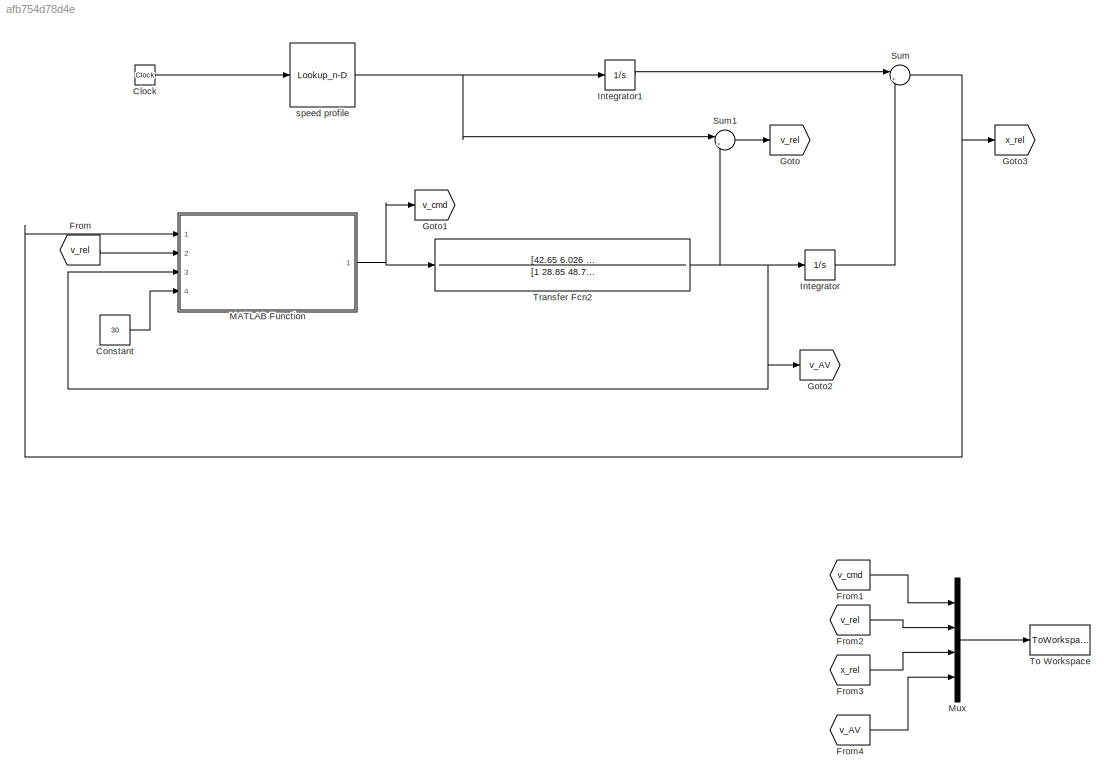
MODEL slx_afb754d78d4e
KIND model
CONFIG AbsTol = auto
CONFIG EnableMultiTasking = off
CONFIG FixedStep = auto
CONFIG MaxStep = auto
CONFIG MinStep = auto
CONFIG RelTol = 1e-3
CONFIG SampleTimeConstraint = Unconstrained
CONFIG Solver = VariableStepAuto
CONFIG SolverName = VariableStepAuto
CONFIG StartTime = 0.0
CONFIG StopTime = 10.0
BLOCK [Clock] Clock
BLOCK [Constant] Constant
  Value = 30
BLOCK [From] From
  GotoTag = v_rel
BLOCK [From] From1
  GotoTag = v_cmd
BLOCK [From] From2
  GotoTag = v_rel
BLOCK [From] From3
  GotoTag = x_rel
BLOCK [From] From4
  GotoTag = v_AV
BLOCK [Goto] Goto
  GotoTag = v_rel
BLOCK [Goto] Goto1
  GotoTag = v_cmd
BLOCK [Goto] Goto2
  GotoTag = v_AV
BLOCK [Goto] Goto3
  GotoTag = x_rel
BLOCK [Integrator] Integrator
  Ports = [1, 1]
BLOCK [Integrator] Integrator1
  Ports = [1, 1]
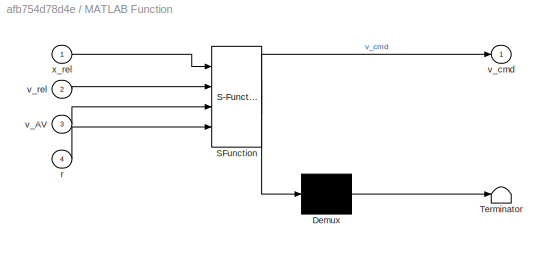
BLOCK [SubSystem] MATLAB Function
  ErrorFcn = Stateflow.Translate.translate
  PermitHierarchicalResolution = ExplicitOnly
  Ports = [4, 1]
  RequestExecContextInheritance = off
  SFBlockType = MATLAB Function
  TreatAsAtomicUnit = on
BLOCK [Demux] MATLAB Function/ Demux 
  Outputs = 1
  Ports = [1, 1]
BLOCK [S-Function] MATLAB Function/ SFunction 
  EnableBusSupport = off
  FunctionName = sf_sfun
  PortCounts = [4 2]
  Ports = [4, 2]
  SFcnIsStateOwnerBlock = off
  SFunctionDeploymentMode = off
  Tag = Stateflow S-Function FS_test 2
BLOCK [Terminator] MATLAB Function/ Terminator 
BLOCK [Inport] MATLAB Function/r
  IconDisplay = Port number
  Port = 4
BLOCK [Inport] MATLAB Function/v_AV
  IconDisplay = Port number
  Port = 3
BLOCK [Outport] MATLAB Function/v_cmd
  IconDisplay = Port number
BLOCK [Inport] MATLAB Function/v_rel
  IconDisplay = Port number
  Port = 2
BLOCK [Inport] MATLAB Function/x_rel
  IconDisplay = Port number
BLOCK [Mux] Mux
  DisplayOption = bar
  Ports = [4, 1]
BLOCK [Sum] Sum
  IconShape = round
  InputSameDT = off
  Inputs = |+-
  OutDataTypeStr = Inherit: Inherit via internal rule
  Ports = [2, 1]
  SaturateOnIntegerOverflow = off
BLOCK [Sum] Sum1
  IconShape = round
  InputSameDT = off
  Inputs = |+-
  OutDataTypeStr = Inherit: Inherit via internal rule
  Ports = [2, 1]
  SaturateOnIntegerOverflow = off
BLOCK [ToWorkspace] To Workspace
  FixptAsFi = on
  MaxDataPoints = inf
  Ports = [1]
  SampleTime = -1
  Save2DSignal = 3-D array (concatenate along third dimension)
  SaveFormat = Timeseries
  VariableName = simout
BLOCK [TransferFcn] Transfer Fcn2
  Denominator = [1 28.85 48.76 6.434 1.197]
  Numerator = [42.65 6.026 1.165]
BLOCK [Lookup_n-D] speed profile
  BreakpointsForDimension1 = [-5:5]
  InternalRulePriority = Speed
  NumberOfTableDimensions = 1
  Ports = [1, 1]
  RndMeth = Simplest
  Table = tanh([-5:5])
LINE Clock:1 -> speed profile:1
LINE Constant:1 -> MATLAB Function:4
LINE From1:1 -> Mux:1
LINE From2:1 -> Mux:2
LINE From3:1 -> Mux:3
LINE From4:1 -> Mux:4
LINE From:1 -> MATLAB Function:2
LINE Integrator1:1 -> Sum:1
LINE Integrator:1 -> Sum:2
NET MATLAB Function:1 -> Goto1:1, Transfer Fcn2:1
LINE Mux:1 -> To Workspace:1
LINE Sum1:1 -> Goto:1
NET Sum:1 -> Goto3:1, MATLAB Function:1
NET Transfer Fcn2:1 -> Goto2:1, Integrator:1, MATLAB Function:3, Sum1:2
NET speed profile:1 -> Integrator1:1, Sum1:1
note: NET lines group one-source signal fan-out (src -> all destinations, sorted); 1:1 wires keep LINE
CHART MATLAB Function states=1 transitions=1
  STATE_LABEL 'eML_blk_kernel()'
  STATE_LABEL 'SCRIPT:\nfunction v_cmd = fcn(x_rel,v_rel,v_AV,r)\n\n% d_rel : relative distance (x_l - x_f)\n% v_rel : relative speed  (v_l-v_f)\n% v_av : subject vehicle absolute speed\n% v_des : desired speed of the subject vehicle at next time step.\n% d_rel,v_rel,v_av, and v_des are double arrays (matrices) of same dimension\n\n%% follower stopper parmaeters\n    w = zeros(3,1);\n    alpha = zeros(3,1);\n    w(1) = 4.5;...<+1264ch>'
